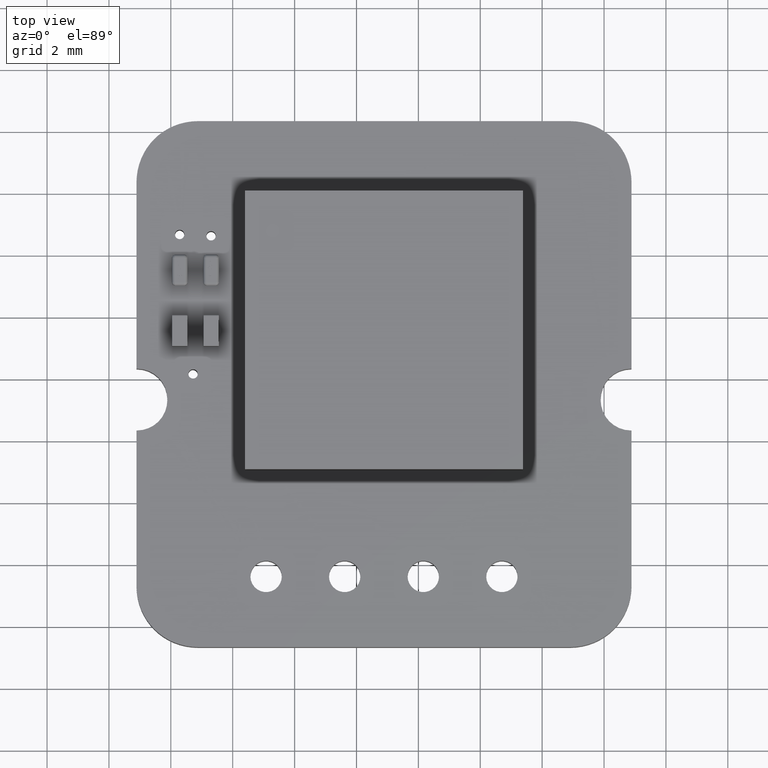
[diagram: clean part render]
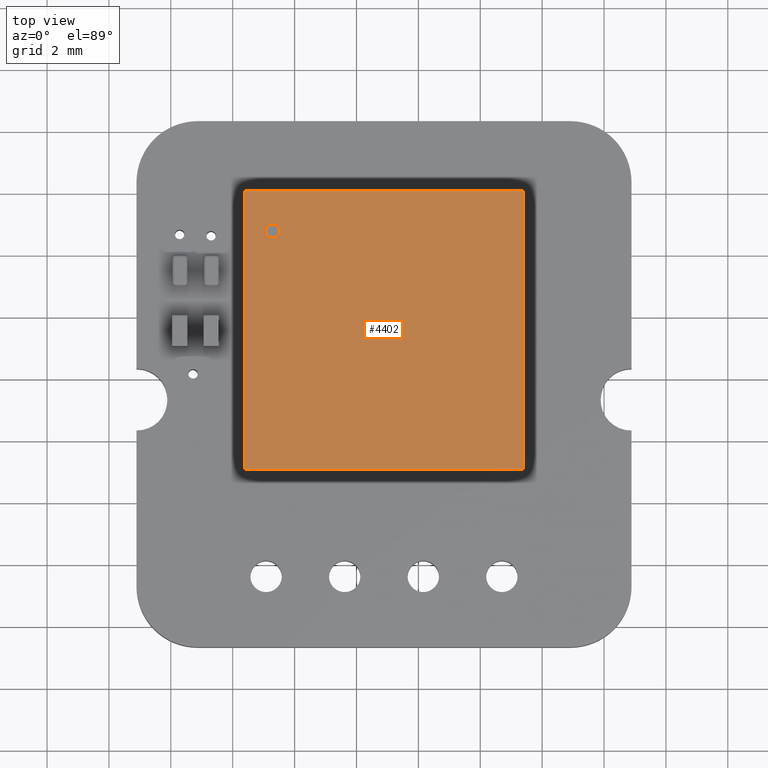
[diagram: same view with one face highlighted and labeled with its STEP entity id]
A machine part, top view. The second image highlights one B-rep face of the part: STEP entity #4402.
In plain terms, the highlighted planar face has unit normal (0, 0, 1).
Its self-contained STEP definition (entity closure, byte-faithful):
#4281 = VERTEX_POINT('',#4282);
#4282 = CARTESIAN_POINT('',(4.496,-4.496,2.057));
#4288 = EDGE_CURVE('',#4289,#4281,#4291,.T.);
#4289 = VERTEX_POINT('',#4290);
#4290 = CARTESIAN_POINT('',(-4.496,-4.496,2.057));
#4291 = LINE('',#4292,#4293);
#4292 = CARTESIAN_POINT('',(-4.496,-4.496,2.057));
#4293 = VECTOR('',#4294,1.);
#4294 = DIRECTION('',(1.,0.E+000,0.E+000));
#4319 = VERTEX_POINT('',#4320);
#4320 = CARTESIAN_POINT('',(4.496,4.496,2.057));
#4326 = EDGE_CURVE('',#4281,#4319,#4327,.T.);
#4327 = LINE('',#4328,#4329);
#4328 = CARTESIAN_POINT('',(4.496,-4.496,2.057));
#4329 = VECTOR('',#4330,1.);
#4330 = DIRECTION('',(0.E+000,1.,0.E+000));
#4350 = VERTEX_POINT('',#4351);
#4351 = CARTESIAN_POINT('',(-4.496,4.496,2.057));
#4357 = EDGE_CURVE('',#4319,#4350,#4358,.T.);
#4358 = LINE('',#4359,#4360);
#4359 = CARTESIAN_POINT('',(4.496,4.496,2.057));
#4360 = VECTOR('',#4361,1.);
#4361 = DIRECTION('',(-1.,0.E+000,0.E+000));
#4379 = EDGE_CURVE('',#4350,#4289,#4380,.T.);
#4380 = LINE('',#4381,#4382);
#4381 = CARTESIAN_POINT('',(-4.496,4.496,2.057));
#4382 = VECTOR('',#4383,1.);
#4383 = DIRECTION('',(0.E+000,-1.,0.E+000));
#4402 = ADVANCED_FACE('',(#4403),#4409,.T.);
#4403 = FACE_BOUND('',#4404,.T.);
#4404 = EDGE_LOOP('',(#4405,#4406,#4407,#4408));
#4405 = ORIENTED_EDGE('',*,*,#4288,.T.);
#4406 = ORIENTED_EDGE('',*,*,#4326,.T.);
#4407 = ORIENTED_EDGE('',*,*,#4357,.T.);
#4408 = ORIENTED_EDGE('',*,*,#4379,.T.);
#4409 = PLANE('',#4410);
#4410 = AXIS2_PLACEMENT_3D('',#4411,#4412,#4413);
#4411 = CARTESIAN_POINT('',(-4.496,-4.496,2.057));
#4412 = DIRECTION('',(0.E+000,0.E+000,1.));
#4413 = DIRECTION('',(0.E+000,1.,0.E+000));